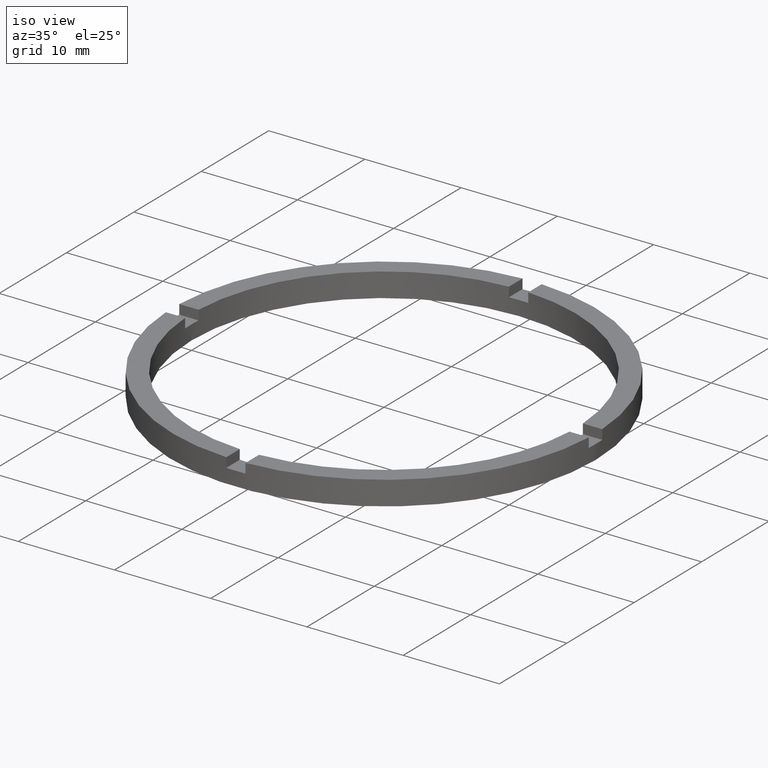
[diagram: clean part render]
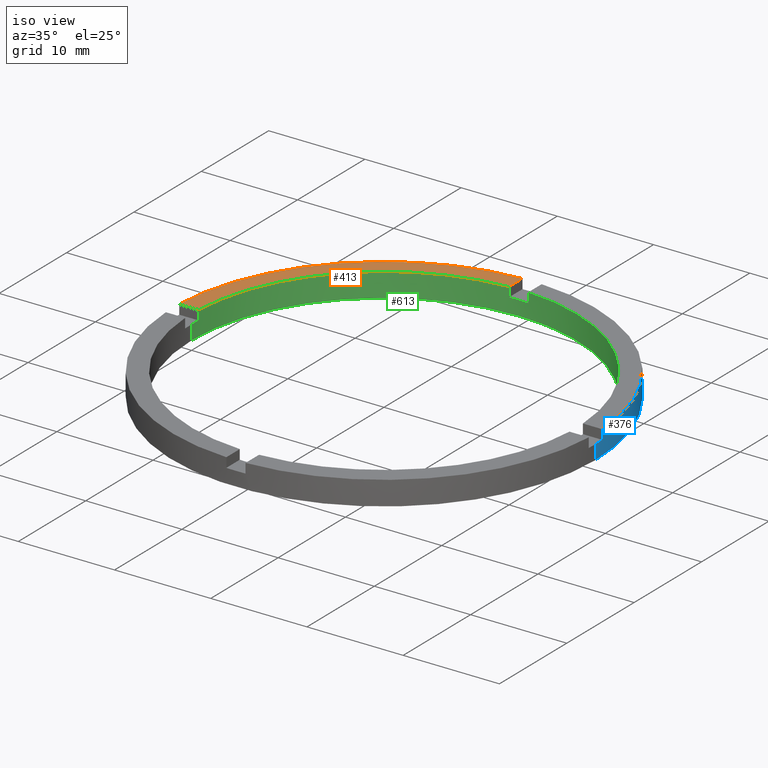
[diagram: same view with three faces highlighted in distinct colors, each labeled with its STEP entity id]
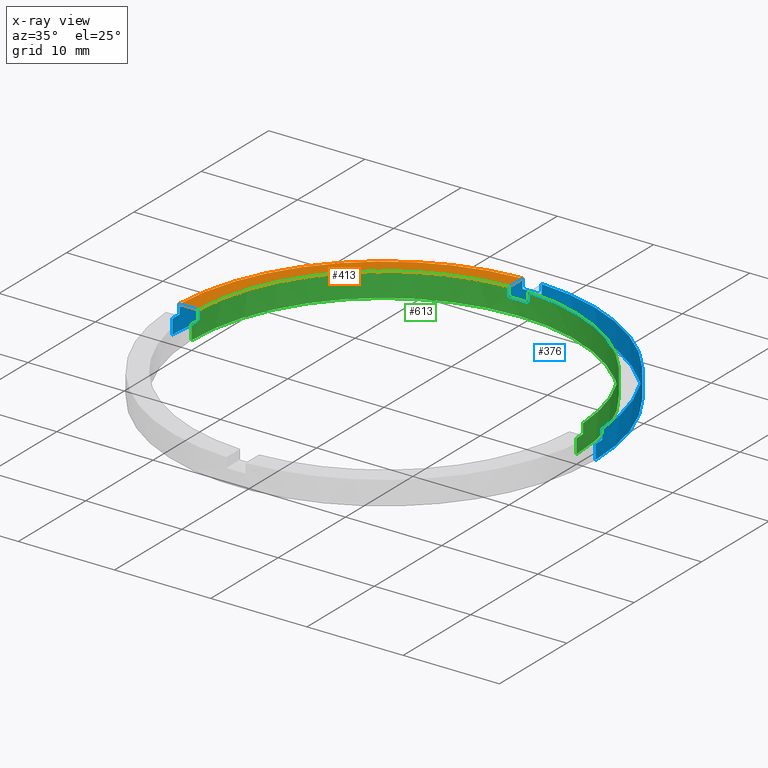
[diagram: x-ray of the same camera — body ghosted, the three highlighted faces saturated]
A machine part, iso view with three faces highlighted in distinct colors.
The next image is the same camera in x-ray (body ghosted, the three faces saturated) — at least one of them is partly hidden behind the body in this view.
Their STEP definitions:

[orange] entity #413 — the highlighted planar face has unit normal (0, 0, 1).
#6 = CARTESIAN_POINT ( 'NONE',  ( 0.000000000000000000, 0.000000000000000000, 2.500000000000000000 ) ) ;
#31 = DIRECTION ( 'NONE',  ( 0.000000000000000000, 0.000000000000000000, 1.000000000000000000 ) ) ;
#75 = DIRECTION ( 'NONE',  ( 0.000000000000000000, 0.000000000000000000, 1.000000000000000000 ) ) ;
#140 = DIRECTION ( 'NONE',  ( -1.000000000000000000, -1.734723475976807341E-16, 0.000000000000000000 ) ) ;
#189 = EDGE_CURVE ( 'NONE', #263, #689, #212, .T. ) ;
#197 = EDGE_LOOP ( 'NONE', ( #223, #688, #717, #683 ) ) ;
#208 = CARTESIAN_POINT ( 'NONE',  ( 0.000000000000000000, 0.000000000000000000, 2.500000000000000000 ) ) ;
#210 = VECTOR ( 'NONE', #401, 1000.000000000000000 ) ;
#212 = LINE ( 'NONE', #364, #210 ) ;
#223 = ORIENTED_EDGE ( 'NONE', *, *, #189, .F. ) ;
#229 = AXIS2_PLACEMENT_3D ( 'NONE', #469, #31, #590 ) ;
#263 = VERTEX_POINT ( 'NONE', #268 ) ;
#268 = CARTESIAN_POINT ( 'NONE',  ( -1.000000000000025757, 21.97726097583590743, 2.500000000000000000 ) ) ;
#270 = AXIS2_PLACEMENT_3D ( 'NONE', #6, #75, #382 ) ;
#275 = CARTESIAN_POINT ( 'NONE',  ( -1.000000000000025757, 19.97498435543817763, 2.500000000000000000 ) ) ;
#276 = PLANE ( 'NONE',  #517 ) ;
#308 = LINE ( 'NONE', #626, #309 ) ;
#309 = VECTOR ( 'NONE', #140, 1000.000000000000000 ) ;
#326 = VERTEX_POINT ( 'NONE', #404 ) ;
#338 = FACE_OUTER_BOUND ( 'NONE', #197, .T. ) ;
#344 = CIRCLE ( 'NONE', #270, 22.00000000000000000 ) ;
#364 = CARTESIAN_POINT ( 'NONE',  ( -1.000000000000025757, 11.99999999999999822, 2.500000000000000000 ) ) ;
#382 = DIRECTION ( 'NONE',  ( 1.000000000000000000, 0.000000000000000000, 0.000000000000000000 ) ) ;
#385 = DIRECTION ( 'NONE',  ( 1.000000000000000000, 0.000000000000000000, -0.000000000000000000 ) ) ;
#401 = DIRECTION ( 'NONE',  ( -0.000000000000000000, -1.000000000000000000, -0.000000000000000000 ) ) ;
#403 = EDGE_CURVE ( 'NONE', #326, #701, #308, .T. ) ;
#404 = CARTESIAN_POINT ( 'NONE',  ( -19.97498435543818118, 0.9999999999999753530, 2.500000000000000000 ) ) ;
#413 = ADVANCED_FACE ( 'NONE', ( #338 ), #276, .T. ) ;
#469 = CARTESIAN_POINT ( 'NONE',  ( 0.000000000000000000, 0.000000000000000000, 2.500000000000000000 ) ) ;
#481 = EDGE_CURVE ( 'NONE', #689, #326, #578, .T. ) ;
#517 = AXIS2_PLACEMENT_3D ( 'NONE', #208, #677, #385 ) ;
#578 = CIRCLE ( 'NONE', #229, 20.00000000000000000 ) ;
#590 = DIRECTION ( 'NONE',  ( 1.000000000000000000, 0.000000000000000000, 0.000000000000000000 ) ) ;
#600 = EDGE_CURVE ( 'NONE', #263, #701, #344, .T. ) ;
#626 = CARTESIAN_POINT ( 'NONE',  ( -12.00000000000018474, 0.9999999999999765743, 2.500000000000000000 ) ) ;
#668 = CARTESIAN_POINT ( 'NONE',  ( -21.97726097583591098, 0.9999999999999749090, 2.500000000000000000 ) ) ;
#677 = DIRECTION ( 'NONE',  ( 0.000000000000000000, 0.000000000000000000, 1.000000000000000000 ) ) ;
#683 = ORIENTED_EDGE ( 'NONE', *, *, #481, .F. ) ;
#688 = ORIENTED_EDGE ( 'NONE', *, *, #600, .T. ) ;
#689 = VERTEX_POINT ( 'NONE', #275 ) ;
#701 = VERTEX_POINT ( 'NONE', #668 ) ;
#717 = ORIENTED_EDGE ( 'NONE', *, *, #403, .F. ) ;

[blue] entity #376 — the highlighted cylindrical surface (partial cylindrical patch) has radius 22 mm, axis along (-0, -0, -1).
#3 = DIRECTION ( 'NONE',  ( 0.000000000000000000, 0.000000000000000000, 1.000000000000000000 ) ) ;
#6 = CARTESIAN_POINT ( 'NONE',  ( 0.000000000000000000, 0.000000000000000000, 2.500000000000000000 ) ) ;
#11 = EDGE_CURVE ( 'NONE', #179, #433, #228, .T. ) ;
#26 = CARTESIAN_POINT ( 'NONE',  ( 0.9999999999999742428, 21.97726097583591098, 2.500000000000000000 ) ) ;
#58 = VERTEX_POINT ( 'NONE', #26 ) ;
#71 = LINE ( 'NONE', #224, #601 ) ;
#75 = DIRECTION ( 'NONE',  ( 0.000000000000000000, 0.000000000000000000, 1.000000000000000000 ) ) ;
#80 = AXIS2_PLACEMENT_3D ( 'NONE', #90, #450, #363 ) ;
#90 = CARTESIAN_POINT ( 'NONE',  ( 0.000000000000000000, 0.000000000000000000, 0.000000000000000000 ) ) ;
#97 = EDGE_CURVE ( 'NONE', #728, #58, #498, .T. ) ;
#102 = DIRECTION ( 'NONE',  ( -0.000000000000000000, -0.000000000000000000, -1.000000000000000000 ) ) ;
#106 = EDGE_CURVE ( 'NONE', #472, #701, #746, .T. ) ;
#112 = AXIS2_PLACEMENT_3D ( 'NONE', #362, #399, #675 ) ;
#118 = DIRECTION ( 'NONE',  ( 1.000000000000000000, 0.000000000000000000, 0.000000000000000000 ) ) ;
#121 = CARTESIAN_POINT ( 'NONE',  ( 0.9999999999999742428, 21.97726097583591098, 2.500000000000000000 ) ) ;
#131 = EDGE_CURVE ( 'NONE', #179, #58, #747, .T. ) ;
#150 = ORIENTED_EDGE ( 'NONE', *, *, #11, .F. ) ;
#163 = AXIS2_PLACEMENT_3D ( 'NONE', #460, #102, #636 ) ;
#169 = ORIENTED_EDGE ( 'NONE', *, *, #97, .F. ) ;
#179 = VERTEX_POINT ( 'NONE', #772 ) ;
#188 = VERTEX_POINT ( 'NONE', #288 ) ;
#207 = CIRCLE ( 'NONE', #80, 22.00000000000000000 ) ;
#211 = ORIENTED_EDGE ( 'NONE', *, *, #131, .T. ) ;
#215 = CARTESIAN_POINT ( 'NONE',  ( -21.97726097583591098, 0.9999999999999749090, 1.500000000000000000 ) ) ;
#222 = CARTESIAN_POINT ( 'NONE',  ( 22.00000000000000000, 2.694222958124176809E-15, 0.000000000000000000 ) ) ;
#224 = CARTESIAN_POINT ( 'NONE',  ( -22.00000000000000000, 0.000000000000000000, 2.500000000000000000 ) ) ;
#226 = DIRECTION ( 'NONE',  ( 0.000000000000000000, -0.000000000000000000, 1.000000000000000000 ) ) ;
#228 = CIRCLE ( 'NONE', #237, 22.00000000000000000 ) ;
#237 = AXIS2_PLACEMENT_3D ( 'NONE', #627, #226, #350 ) ;
#241 = CIRCLE ( 'NONE', #425, 22.00000000000000000 ) ;
#263 = VERTEX_POINT ( 'NONE', #268 ) ;
#268 = CARTESIAN_POINT ( 'NONE',  ( -1.000000000000025757, 21.97726097583590743, 2.500000000000000000 ) ) ;
#270 = AXIS2_PLACEMENT_3D ( 'NONE', #6, #75, #382 ) ;
#286 = DIRECTION ( 'NONE',  ( -0.000000000000000000, -0.000000000000000000, -1.000000000000000000 ) ) ;
#288 = CARTESIAN_POINT ( 'NONE',  ( -22.00000000000000000, 0.000000000000000000, 1.500000000000000000 ) ) ;
#301 = CARTESIAN_POINT ( 'NONE',  ( 21.97726097583591809, 0.9999999999998419042, 2.500000000000000000 ) ) ;
#323 = CARTESIAN_POINT ( 'NONE',  ( -21.97726097583591098, 0.9999999999999749090, 2.500000000000000000 ) ) ;
#324 = VECTOR ( 'NONE', #770, 1000.000000000000000 ) ;
#340 = LINE ( 'NONE', #595, #324 ) ;
#341 = LINE ( 'NONE', #562, #597 ) ;
#344 = CIRCLE ( 'NONE', #270, 22.00000000000000000 ) ;
#345 = CARTESIAN_POINT ( 'NONE',  ( -1.000000000000025757, 21.97726097583590743, 1.500000000000000000 ) ) ;
#350 = DIRECTION ( 'NONE',  ( 1.000000000000000000, 0.000000000000000000, 0.000000000000000000 ) ) ;
#356 = CARTESIAN_POINT ( 'NONE',  ( -22.00000000000000000, 0.000000000000000000, 0.000000000000000000 ) ) ;
#362 = CARTESIAN_POINT ( 'NONE',  ( 0.000000000000000000, 0.000000000000000000, 1.500000000000000000 ) ) ;
#363 = DIRECTION ( 'NONE',  ( 1.000000000000000000, 0.000000000000000000, 0.000000000000000000 ) ) ;
#365 = EDGE_CURVE ( 'NONE', #728, #703, #506, .T. ) ;
#372 = EDGE_CURVE ( 'NONE', #438, #703, #241, .T. ) ;
#374 = AXIS2_PLACEMENT_3D ( 'NONE', #616, #648, #118 ) ;
#376 = ADVANCED_FACE ( 'NONE', ( #507 ), #755, .T. ) ;
#377 = EDGE_CURVE ( 'NONE', #659, #475, #207, .T. ) ;
#382 = DIRECTION ( 'NONE',  ( 1.000000000000000000, 0.000000000000000000, 0.000000000000000000 ) ) ;
#389 = CARTESIAN_POINT ( 'NONE',  ( 21.97726097583591809, 0.9999999999998419042, 2.500000000000000000 ) ) ;
#399 = DIRECTION ( 'NONE',  ( 0.000000000000000000, 0.000000000000000000, 1.000000000000000000 ) ) ;
#418 = ORIENTED_EDGE ( 'NONE', *, *, #377, .T. ) ;
#423 = EDGE_CURVE ( 'NONE', #188, #475, #71, .T. ) ;
#425 = AXIS2_PLACEMENT_3D ( 'NONE', #596, #629, #751 ) ;
#428 = ORIENTED_EDGE ( 'NONE', *, *, #536, .T. ) ;
#432 = ORIENTED_EDGE ( 'NONE', *, *, #600, .F. ) ;
#433 = VERTEX_POINT ( 'NONE', #345 ) ;
#438 = VERTEX_POINT ( 'NONE', #768 ) ;
#447 = ORIENTED_EDGE ( 'NONE', *, *, #106, .T. ) ;
#450 = DIRECTION ( 'NONE',  ( 0.000000000000000000, 0.000000000000000000, 1.000000000000000000 ) ) ;
#456 = ORIENTED_EDGE ( 'NONE', *, *, #365, .T. ) ;
#460 = CARTESIAN_POINT ( 'NONE',  ( 0.000000000000000000, 0.000000000000000000, 2.500000000000000000 ) ) ;
#472 = VERTEX_POINT ( 'NONE', #215 ) ;
#475 = VERTEX_POINT ( 'NONE', #356 ) ;
#477 = VECTOR ( 'NONE', #748, 1000.000000000000000 ) ;
#498 = CIRCLE ( 'NONE', #374, 22.00000000000000000 ) ;
#506 = LINE ( 'NONE', #389, #509 ) ;
#507 = FACE_OUTER_BOUND ( 'NONE', #666, .T. ) ;
#509 = VECTOR ( 'NONE', #756, 1000.000000000000000 ) ;
#532 = EDGE_CURVE ( 'NONE', #472, #188, #599, .T. ) ;
#536 = EDGE_CURVE ( 'NONE', #263, #433, #340, .T. ) ;
#562 = CARTESIAN_POINT ( 'NONE',  ( 22.00000000000000000, 2.694222958124176809E-15, 2.500000000000000000 ) ) ;
#584 = EDGE_CURVE ( 'NONE', #438, #659, #341, .T. ) ;
#595 = CARTESIAN_POINT ( 'NONE',  ( -1.000000000000025757, 21.97726097583590743, 2.500000000000000000 ) ) ;
#596 = CARTESIAN_POINT ( 'NONE',  ( 0.000000000000000000, 0.000000000000000000, 1.500000000000000000 ) ) ;
#597 = VECTOR ( 'NONE', #286, 1000.000000000000000 ) ;
#599 = CIRCLE ( 'NONE', #112, 22.00000000000000000 ) ;
#600 = EDGE_CURVE ( 'NONE', #263, #701, #344, .T. ) ;
#601 = VECTOR ( 'NONE', #670, 1000.000000000000000 ) ;
#616 = CARTESIAN_POINT ( 'NONE',  ( 0.000000000000000000, 0.000000000000000000, 2.500000000000000000 ) ) ;
#627 = CARTESIAN_POINT ( 'NONE',  ( 0.000000000000000000, 0.000000000000000000, 1.500000000000000000 ) ) ;
#629 = DIRECTION ( 'NONE',  ( 0.000000000000000000, 0.000000000000000000, 1.000000000000000000 ) ) ;
#636 = DIRECTION ( 'NONE',  ( -1.000000000000000000, 0.000000000000000000, 0.000000000000000000 ) ) ;
#648 = DIRECTION ( 'NONE',  ( 0.000000000000000000, 0.000000000000000000, 1.000000000000000000 ) ) ;
#659 = VERTEX_POINT ( 'NONE', #222 ) ;
#666 = EDGE_LOOP ( 'NONE', ( #708, #682, #418, #679, #720, #447, #432, #428, #150, #211, #169, #456 ) ) ;
#668 = CARTESIAN_POINT ( 'NONE',  ( -21.97726097583591098, 0.9999999999999749090, 2.500000000000000000 ) ) ;
#670 = DIRECTION ( 'NONE',  ( -0.000000000000000000, -0.000000000000000000, -1.000000000000000000 ) ) ;
#675 = DIRECTION ( 'NONE',  ( 1.000000000000000000, 0.000000000000000000, 0.000000000000000000 ) ) ;
#679 = ORIENTED_EDGE ( 'NONE', *, *, #423, .F. ) ;
#682 = ORIENTED_EDGE ( 'NONE', *, *, #584, .T. ) ;
#701 = VERTEX_POINT ( 'NONE', #668 ) ;
#703 = VERTEX_POINT ( 'NONE', #764 ) ;
#708 = ORIENTED_EDGE ( 'NONE', *, *, #372, .F. ) ;
#720 = ORIENTED_EDGE ( 'NONE', *, *, #532, .F. ) ;
#728 = VERTEX_POINT ( 'NONE', #301 ) ;
#736 = VECTOR ( 'NONE', #3, 1000.000000000000000 ) ;
#746 = LINE ( 'NONE', #323, #736 ) ;
#747 = LINE ( 'NONE', #121, #477 ) ;
#748 = DIRECTION ( 'NONE',  ( 0.000000000000000000, 0.000000000000000000, 1.000000000000000000 ) ) ;
#751 = DIRECTION ( 'NONE',  ( 1.000000000000000000, 0.000000000000000000, 0.000000000000000000 ) ) ;
#755 = CYLINDRICAL_SURFACE ( 'NONE', #163, 22.00000000000000000 ) ;
#756 = DIRECTION ( 'NONE',  ( -0.000000000000000000, -0.000000000000000000, -1.000000000000000000 ) ) ;
#764 = CARTESIAN_POINT ( 'NONE',  ( 21.97726097583591809, 0.9999999999998419042, 1.500000000000000000 ) ) ;
#768 = CARTESIAN_POINT ( 'NONE',  ( 22.00000000000000000, 2.694222958124176809E-15, 1.500000000000000000 ) ) ;
#770 = DIRECTION ( 'NONE',  ( -0.000000000000000000, -0.000000000000000000, -1.000000000000000000 ) ) ;
#772 = CARTESIAN_POINT ( 'NONE',  ( 0.9999999999999742428, 21.97726097583591098, 1.500000000000000000 ) ) ;

[green] entity #613 — the highlighted cylindrical surface (partial cylindrical patch) has radius 20 mm, axis along (-0, -0, -1).
#17 = CARTESIAN_POINT ( 'NONE',  ( 0.000000000000000000, 0.000000000000000000, 2.500000000000000000 ) ) ;
#21 = CARTESIAN_POINT ( 'NONE',  ( 20.00000000000000000, 2.449293598294706513E-15, 1.500000000000000000 ) ) ;
#31 = DIRECTION ( 'NONE',  ( 0.000000000000000000, 0.000000000000000000, 1.000000000000000000 ) ) ;
#34 = FACE_OUTER_BOUND ( 'NONE', #444, .T. ) ;
#36 = LINE ( 'NONE', #280, #40 ) ;
#37 = LINE ( 'NONE', #628, #313 ) ;
#38 = DIRECTION ( 'NONE',  ( 0.000000000000000000, 0.000000000000000000, 1.000000000000000000 ) ) ;
#40 = VECTOR ( 'NONE', #569, 1000.000000000000000 ) ;
#42 = LINE ( 'NONE', #337, #320 ) ;
#43 = ORIENTED_EDGE ( 'NONE', *, *, #407, .F. ) ;
#44 = VERTEX_POINT ( 'NONE', #663 ) ;
#69 = CIRCLE ( 'NONE', #650, 20.00000000000000000 ) ;
#72 = ORIENTED_EDGE ( 'NONE', *, *, #415, .T. ) ;
#78 = EDGE_CURVE ( 'NONE', #491, #430, #218, .T. ) ;
#81 = AXIS2_PLACEMENT_3D ( 'NONE', #638, #693, #252 ) ;
#83 = ORIENTED_EDGE ( 'NONE', *, *, #555, .F. ) ;
#85 = CARTESIAN_POINT ( 'NONE',  ( 19.97498435543818829, 0.9999999999998419042, 1.500000000000000000 ) ) ;
#89 = DIRECTION ( 'NONE',  ( 1.000000000000000000, 0.000000000000000000, 0.000000000000000000 ) ) ;
#94 = CARTESIAN_POINT ( 'NONE',  ( -20.00000000000000000, 0.000000000000000000, 1.500000000000000000 ) ) ;
#99 = CARTESIAN_POINT ( 'NONE',  ( 0.9999999999999742428, 19.97498435543818118, 2.500000000000000000 ) ) ;
#107 = CARTESIAN_POINT ( 'NONE',  ( 0.9999999999999742428, 19.97498435543818118, 2.500000000000000000 ) ) ;
#108 = VECTOR ( 'NONE', #657, 1000.000000000000000 ) ;
#138 = EDGE_CURVE ( 'NONE', #435, #661, #484, .T. ) ;
#151 = DIRECTION ( 'NONE',  ( 0.000000000000000000, 0.000000000000000000, 1.000000000000000000 ) ) ;
#152 = DIRECTION ( 'NONE',  ( 1.000000000000000000, 0.000000000000000000, 0.000000000000000000 ) ) ;
#185 = ORIENTED_EDGE ( 'NONE', *, *, #391, .F. ) ;
#218 = CIRCLE ( 'NONE', #296, 20.00000000000000000 ) ;
#220 = ORIENTED_EDGE ( 'NONE', *, *, #254, .T. ) ;
#229 = AXIS2_PLACEMENT_3D ( 'NONE', #469, #31, #590 ) ;
#236 = CARTESIAN_POINT ( 'NONE',  ( -20.00000000000000000, 0.000000000000000000, 0.000000000000000000 ) ) ;
#246 = EDGE_CURVE ( 'NONE', #647, #473, #496, .T. ) ;
#251 = LINE ( 'NONE', #300, #762 ) ;
#252 = DIRECTION ( 'NONE',  ( 1.000000000000000000, 0.000000000000000000, 0.000000000000000000 ) ) ;
#254 = EDGE_CURVE ( 'NONE', #647, #706, #759, .T. ) ;
#255 = CIRCLE ( 'NONE', #519, 20.00000000000000000 ) ;
#275 = CARTESIAN_POINT ( 'NONE',  ( -1.000000000000025757, 19.97498435543817763, 2.500000000000000000 ) ) ;
#280 = CARTESIAN_POINT ( 'NONE',  ( -20.00000000000000000, 0.000000000000000000, 2.500000000000000000 ) ) ;
#295 = CARTESIAN_POINT ( 'NONE',  ( 0.000000000000000000, 0.000000000000000000, 2.500000000000000000 ) ) ;
#296 = AXIS2_PLACEMENT_3D ( 'NONE', #416, #508, #556 ) ;
#299 = EDGE_CURVE ( 'NONE', #453, #473, #255, .T. ) ;
#300 = CARTESIAN_POINT ( 'NONE',  ( -19.97498435543818118, 0.9999999999999753530, 2.500000000000000000 ) ) ;
#307 = EDGE_CURVE ( 'NONE', #491, #326, #251, .T. ) ;
#313 = VECTOR ( 'NONE', #386, 1000.000000000000000 ) ;
#320 = VECTOR ( 'NONE', #530, 1000.000000000000000 ) ;
#326 = VERTEX_POINT ( 'NONE', #404 ) ;
#333 = DIRECTION ( 'NONE',  ( 0.000000000000000000, 0.000000000000000000, 1.000000000000000000 ) ) ;
#337 = CARTESIAN_POINT ( 'NONE',  ( 20.00000000000000000, 2.449293598294706513E-15, 2.500000000000000000 ) ) ;
#375 = DIRECTION ( 'NONE',  ( 1.000000000000000000, 0.000000000000000000, 0.000000000000000000 ) ) ;
#386 = DIRECTION ( 'NONE',  ( -0.000000000000000000, -0.000000000000000000, -1.000000000000000000 ) ) ;
#391 = EDGE_CURVE ( 'NONE', #689, #706, #740, .T. ) ;
#392 = AXIS2_PLACEMENT_3D ( 'NONE', #17, #623, #744 ) ;
#395 = CARTESIAN_POINT ( 'NONE',  ( 19.97498435543818829, 0.9999999999998419042, 2.500000000000000000 ) ) ;
#404 = CARTESIAN_POINT ( 'NONE',  ( -19.97498435543818118, 0.9999999999999753530, 2.500000000000000000 ) ) ;
#407 = EDGE_CURVE ( 'NONE', #435, #44, #42, .T. ) ;
#409 = CARTESIAN_POINT ( 'NONE',  ( -1.000000000000025757, 19.97498435543817763, 1.500000000000000000 ) ) ;
#415 = EDGE_CURVE ( 'NONE', #430, #464, #36, .T. ) ;
#416 = CARTESIAN_POINT ( 'NONE',  ( 0.000000000000000000, 0.000000000000000000, 1.500000000000000000 ) ) ;
#427 = AXIS2_PLACEMENT_3D ( 'NONE', #622, #333, #375 ) ;
#430 = VERTEX_POINT ( 'NONE', #94 ) ;
#435 = VERTEX_POINT ( 'NONE', #21 ) ;
#444 = EDGE_LOOP ( 'NONE', ( #43, #482, #676, #610, #705, #220, #185, #461, #709, #694, #72, #83 ) ) ;
#449 = CARTESIAN_POINT ( 'NONE',  ( 0.9999999999999742428, 19.97498435543818118, 1.500000000000000000 ) ) ;
#453 = VERTEX_POINT ( 'NONE', #395 ) ;
#461 = ORIENTED_EDGE ( 'NONE', *, *, #481, .T. ) ;
#464 = VERTEX_POINT ( 'NONE', #236 ) ;
#469 = CARTESIAN_POINT ( 'NONE',  ( 0.000000000000000000, 0.000000000000000000, 2.500000000000000000 ) ) ;
#473 = VERTEX_POINT ( 'NONE', #99 ) ;
#481 = EDGE_CURVE ( 'NONE', #689, #326, #578, .T. ) ;
#482 = ORIENTED_EDGE ( 'NONE', *, *, #138, .T. ) ;
#484 = CIRCLE ( 'NONE', #427, 20.00000000000000000 ) ;
#491 = VERTEX_POINT ( 'NONE', #635 ) ;
#496 = LINE ( 'NONE', #107, #741 ) ;
#508 = DIRECTION ( 'NONE',  ( 0.000000000000000000, 0.000000000000000000, 1.000000000000000000 ) ) ;
#519 = AXIS2_PLACEMENT_3D ( 'NONE', #295, #604, #152 ) ;
#527 = CARTESIAN_POINT ( 'NONE',  ( 0.000000000000000000, 0.000000000000000000, 0.000000000000000000 ) ) ;
#530 = DIRECTION ( 'NONE',  ( -0.000000000000000000, -0.000000000000000000, -1.000000000000000000 ) ) ;
#555 = EDGE_CURVE ( 'NONE', #44, #464, #69, .T. ) ;
#556 = DIRECTION ( 'NONE',  ( 1.000000000000000000, 0.000000000000000000, 0.000000000000000000 ) ) ;
#569 = DIRECTION ( 'NONE',  ( -0.000000000000000000, -0.000000000000000000, -1.000000000000000000 ) ) ;
#578 = CIRCLE ( 'NONE', #229, 20.00000000000000000 ) ;
#581 = CYLINDRICAL_SURFACE ( 'NONE', #392, 20.00000000000000000 ) ;
#582 = DIRECTION ( 'NONE',  ( 0.000000000000000000, 0.000000000000000000, 1.000000000000000000 ) ) ;
#590 = DIRECTION ( 'NONE',  ( 1.000000000000000000, 0.000000000000000000, 0.000000000000000000 ) ) ;
#604 = DIRECTION ( 'NONE',  ( 0.000000000000000000, 0.000000000000000000, 1.000000000000000000 ) ) ;
#610 = ORIENTED_EDGE ( 'NONE', *, *, #299, .T. ) ;
#613 = ADVANCED_FACE ( 'NONE', ( #34 ), #581, .F. ) ;
#622 = CARTESIAN_POINT ( 'NONE',  ( 0.000000000000000000, 0.000000000000000000, 1.500000000000000000 ) ) ;
#623 = DIRECTION ( 'NONE',  ( -0.000000000000000000, -0.000000000000000000, -1.000000000000000000 ) ) ;
#628 = CARTESIAN_POINT ( 'NONE',  ( 19.97498435543818829, 0.9999999999998419042, 2.500000000000000000 ) ) ;
#635 = CARTESIAN_POINT ( 'NONE',  ( -19.97498435543818118, 0.9999999999999753530, 1.500000000000000000 ) ) ;
#638 = CARTESIAN_POINT ( 'NONE',  ( 0.000000000000000000, 0.000000000000000000, 1.500000000000000000 ) ) ;
#644 = EDGE_CURVE ( 'NONE', #453, #661, #37, .T. ) ;
#647 = VERTEX_POINT ( 'NONE', #449 ) ;
#650 = AXIS2_PLACEMENT_3D ( 'NONE', #527, #582, #89 ) ;
#657 = DIRECTION ( 'NONE',  ( -0.000000000000000000, -0.000000000000000000, -1.000000000000000000 ) ) ;
#661 = VERTEX_POINT ( 'NONE', #85 ) ;
#663 = CARTESIAN_POINT ( 'NONE',  ( 20.00000000000000000, 2.449293598294706513E-15, 0.000000000000000000 ) ) ;
#676 = ORIENTED_EDGE ( 'NONE', *, *, #644, .F. ) ;
#685 = CARTESIAN_POINT ( 'NONE',  ( -1.000000000000025757, 19.97498435543817763, 2.500000000000000000 ) ) ;
#689 = VERTEX_POINT ( 'NONE', #275 ) ;
#693 = DIRECTION ( 'NONE',  ( 0.000000000000000000, -0.000000000000000000, 1.000000000000000000 ) ) ;
#694 = ORIENTED_EDGE ( 'NONE', *, *, #78, .T. ) ;
#705 = ORIENTED_EDGE ( 'NONE', *, *, #246, .F. ) ;
#706 = VERTEX_POINT ( 'NONE', #409 ) ;
#709 = ORIENTED_EDGE ( 'NONE', *, *, #307, .F. ) ;
#740 = LINE ( 'NONE', #685, #108 ) ;
#741 = VECTOR ( 'NONE', #151, 1000.000000000000000 ) ;
#744 = DIRECTION ( 'NONE',  ( -1.000000000000000000, 0.000000000000000000, 0.000000000000000000 ) ) ;
#759 = CIRCLE ( 'NONE', #81, 20.00000000000000000 ) ;
#762 = VECTOR ( 'NONE', #38, 1000.000000000000000 ) ;